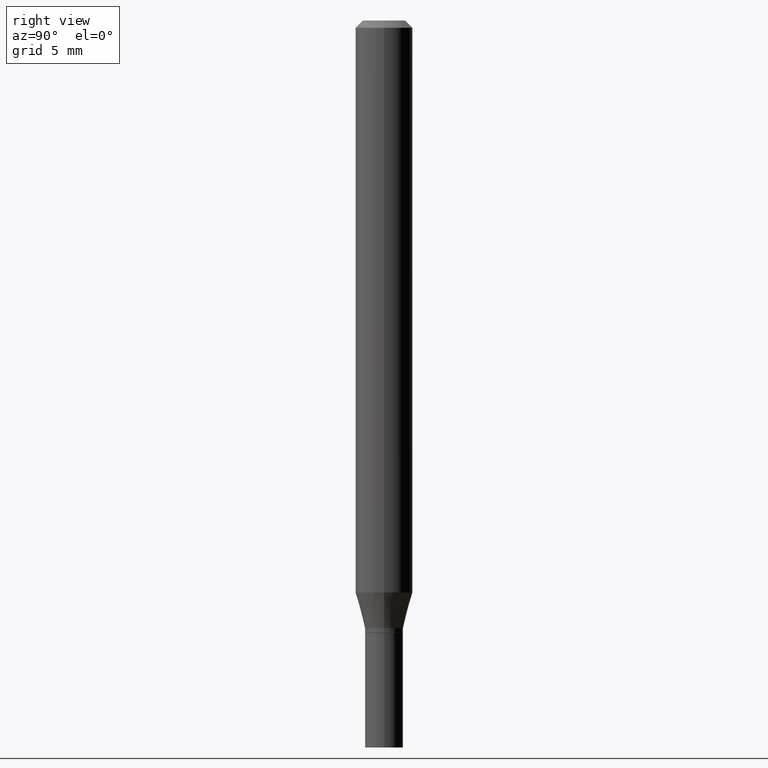
[diagram: clean part render]
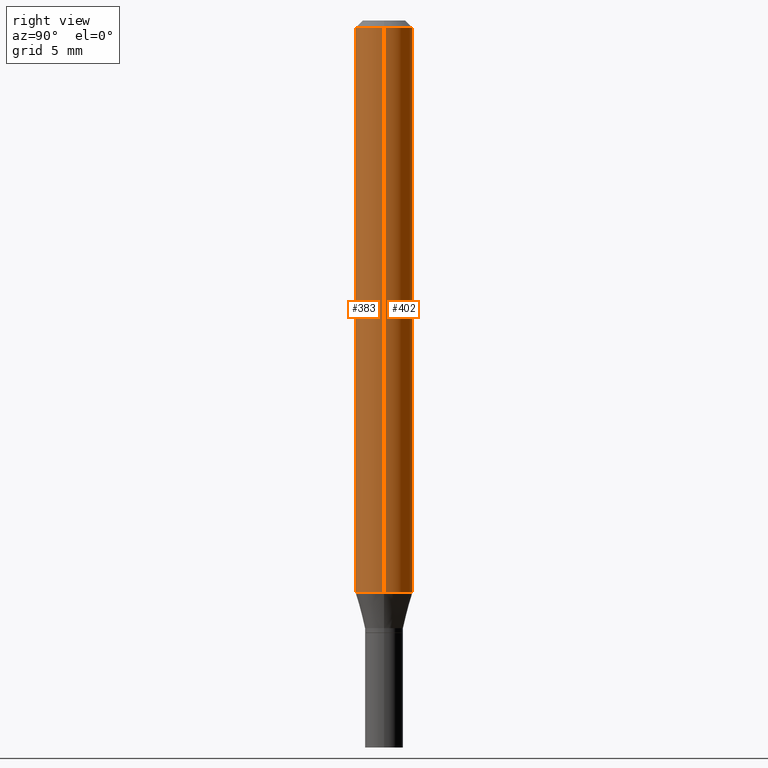
[diagram: same view with one multi-face feature highlighted, each face labeled with its STEP entity id]
A machine part, right view. The highlighted faces form ONE feature: a constant-radius fillet chain: 2 tangent blend faces with common blend radius 1.4999 mm. The faces share edges in the B-rep.
Their STEP definitions:
[1] entity #383 (Cylinder):
#5 = CARTESIAN_POINT ( 'NONE',  ( -0.05904999999999999832, 4.195754854663391478E-16, -2.904631170795521892E-30 ) ) ;
#7 = VERTEX_POINT ( 'NONE', #28 ) ;
#18 = ORIENTED_EDGE ( 'NONE', *, *, #238, .T. ) ;
#28 = CARTESIAN_POINT ( 'NONE',  ( -0.05904999999999999832, -1.667070976255876334E-15, -0.01499999999999999944 ) ) ;
#47 = CARTESIAN_POINT ( 'NONE',  ( 0.05904999999999999832, -4.533264649479156735E-15, -1.180278599090893055 ) ) ;
#48 = DIRECTION ( 'NONE',  ( -2.445468806185136877E-29, 3.491481338843145188E-15, 1.000000000000000000 ) ) ;
#55 = CARTESIAN_POINT ( 'NONE',  ( 0.05904999999999999832, -4.123439461173740327E-16, 2.879382386107500220E-30 ) ) ;
#61 = EDGE_CURVE ( 'NONE', #70, #7, #324, .T. ) ;
#70 = VERTEX_POINT ( 'NONE', #250 ) ;
#86 = VECTOR ( 'NONE', #227, 39.37007874015748143 ) ;
#97 = VECTOR ( 'NONE', #48, 39.37007874015748143 ) ;
#99 = FACE_OUTER_BOUND ( 'NONE', #168, .T. ) ;
#116 = DIRECTION ( 'NONE',  ( 1.000000000000000000, -6.982962677686265133E-15, 0.000000000000000000 ) ) ;
#121 = EDGE_CURVE ( 'NONE', #7, #286, #355, .T. ) ;
#128 = CARTESIAN_POINT ( 'NONE',  ( 0.000000000000000000, 0.000000000000000000, 0.000000000000000000 ) ) ;
#129 = VERTEX_POINT ( 'NONE', #47 ) ;
#137 = ORIENTED_EDGE ( 'NONE', *, *, #218, .T. ) ;
#168 = EDGE_LOOP ( 'NONE', ( #395, #137, #18, #379 ) ) ;
#196 = AXIS2_PLACEMENT_3D ( 'NONE', #128, #456, #244 ) ;
#218 = EDGE_CURVE ( 'NONE', #70, #129, #422, .T. ) ;
#224 = CARTESIAN_POINT ( 'NONE',  ( 0.05904999999999999832, -4.647161662000212105E-16, -0.01499999999999999944 ) ) ;
#227 = DIRECTION ( 'NONE',  ( -2.445468806185136877E-29, 3.491481338843145188E-15, 1.000000000000000000 ) ) ;
#229 = LINE ( 'NONE', #55, #86 ) ;
#238 = EDGE_CURVE ( 'NONE', #129, #286, #229, .T. ) ;
#244 = DIRECTION ( 'NONE',  ( 1.000000000000000000, -6.982962677686266711E-15, 4.876176775795936353E-29 ) ) ;
#250 = CARTESIAN_POINT ( 'NONE',  ( -0.05904999999999999832, -3.701345217895443899E-15, -1.180278599090893055 ) ) ;
#256 = DIRECTION ( 'NONE',  ( 1.000000000000000000, -6.982962677686266711E-15, 0.000000000000000000 ) ) ;
#286 = VERTEX_POINT ( 'NONE', #224 ) ;
#296 = DIRECTION ( 'NONE',  ( -2.445468806185136597E-29, 3.491481338843145583E-15, 1.000000000000000000 ) ) ;
#320 = DIRECTION ( 'NONE',  ( -2.445468806185136597E-29, 3.491481338843145583E-15, 1.000000000000000000 ) ) ;
#324 = LINE ( 'NONE', #5, #97 ) ;
#325 = CARTESIAN_POINT ( 'NONE',  ( 3.668203209277705088E-31, -5.237222008264718399E-17, -0.01499999999999999944 ) ) ;
#332 = CARTESIAN_POINT ( 'NONE',  ( 2.886334496684671915E-29, -4.120920703361783392E-15, -1.180278599090893055 ) ) ;
#355 = CIRCLE ( 'NONE', #411, 0.05904999999999999832 ) ;
#379 = ORIENTED_EDGE ( 'NONE', *, *, #121, .F. ) ;
#383 = ADVANCED_FACE ( 'NONE', ( #99 ), #424, .T. ) ;
#395 = ORIENTED_EDGE ( 'NONE', *, *, #61, .F. ) ;
#411 = AXIS2_PLACEMENT_3D ( 'NONE', #325, #320, #256 ) ;
#422 = CIRCLE ( 'NONE', #453, 0.05904999999999999832 ) ;
#424 = CYLINDRICAL_SURFACE ( 'NONE', #196, 0.05904999999999999832 ) ;
#453 = AXIS2_PLACEMENT_3D ( 'NONE', #332, #296, #116 ) ;
#456 = DIRECTION ( 'NONE',  ( -2.445468806185136597E-29, 3.491481338843145583E-15, 1.000000000000000000 ) ) ;
[2] entity #402 (Cylinder):
#4 = ORIENTED_EDGE ( 'NONE', *, *, #259, .T. ) ;
#5 = CARTESIAN_POINT ( 'NONE',  ( -0.05904999999999999832, 4.195754854663391478E-16, -2.904631170795521892E-30 ) ) ;
#7 = VERTEX_POINT ( 'NONE', #28 ) ;
#28 = CARTESIAN_POINT ( 'NONE',  ( -0.05904999999999999832, -1.667070976255876334E-15, -0.01499999999999999944 ) ) ;
#47 = CARTESIAN_POINT ( 'NONE',  ( 0.05904999999999999832, -4.533264649479156735E-15, -1.180278599090893055 ) ) ;
#48 = DIRECTION ( 'NONE',  ( -2.445468806185136877E-29, 3.491481338843145188E-15, 1.000000000000000000 ) ) ;
#55 = CARTESIAN_POINT ( 'NONE',  ( 0.05904999999999999832, -4.123439461173740327E-16, 2.879382386107500220E-30 ) ) ;
#61 = EDGE_CURVE ( 'NONE', #70, #7, #324, .T. ) ;
#67 = AXIS2_PLACEMENT_3D ( 'NONE', #125, #328, #85 ) ;
#70 = VERTEX_POINT ( 'NONE', #250 ) ;
#85 = DIRECTION ( 'NONE',  ( 1.000000000000000000, -6.982962677686265133E-15, 0.000000000000000000 ) ) ;
#86 = VECTOR ( 'NONE', #227, 39.37007874015748143 ) ;
#97 = VECTOR ( 'NONE', #48, 39.37007874015748143 ) ;
#125 = CARTESIAN_POINT ( 'NONE',  ( 2.886334496684671915E-29, -4.120920703361783392E-15, -1.180278599090893055 ) ) ;
#129 = VERTEX_POINT ( 'NONE', #47 ) ;
#136 = ORIENTED_EDGE ( 'NONE', *, *, #238, .F. ) ;
#144 = ORIENTED_EDGE ( 'NONE', *, *, #400, .F. ) ;
#166 = FACE_OUTER_BOUND ( 'NONE', #284, .T. ) ;
#181 = ORIENTED_EDGE ( 'NONE', *, *, #61, .T. ) ;
#224 = CARTESIAN_POINT ( 'NONE',  ( 0.05904999999999999832, -4.647161662000212105E-16, -0.01499999999999999944 ) ) ;
#227 = DIRECTION ( 'NONE',  ( -2.445468806185136877E-29, 3.491481338843145188E-15, 1.000000000000000000 ) ) ;
#229 = LINE ( 'NONE', #55, #86 ) ;
#236 = CARTESIAN_POINT ( 'NONE',  ( 3.668203209277705088E-31, -5.237222008264718399E-17, -0.01499999999999999944 ) ) ;
#238 = EDGE_CURVE ( 'NONE', #129, #286, #229, .T. ) ;
#250 = CARTESIAN_POINT ( 'NONE',  ( -0.05904999999999999832, -3.701345217895443899E-15, -1.180278599090893055 ) ) ;
#259 = EDGE_CURVE ( 'NONE', #129, #70, #377, .T. ) ;
#262 = AXIS2_PLACEMENT_3D ( 'NONE', #344, #374, #417 ) ;
#269 = CYLINDRICAL_SURFACE ( 'NONE', #262, 0.05904999999999999832 ) ;
#271 = DIRECTION ( 'NONE',  ( -2.445468806185136597E-29, 3.491481338843145583E-15, 1.000000000000000000 ) ) ;
#284 = EDGE_LOOP ( 'NONE', ( #4, #181, #144, #136 ) ) ;
#286 = VERTEX_POINT ( 'NONE', #224 ) ;
#324 = LINE ( 'NONE', #5, #97 ) ;
#328 = DIRECTION ( 'NONE',  ( -2.445468806185136597E-29, 3.491481338843145583E-15, 1.000000000000000000 ) ) ;
#344 = CARTESIAN_POINT ( 'NONE',  ( 0.000000000000000000, 0.000000000000000000, 0.000000000000000000 ) ) ;
#365 = AXIS2_PLACEMENT_3D ( 'NONE', #236, #271, #380 ) ;
#374 = DIRECTION ( 'NONE',  ( -2.445468806185136597E-29, 3.491481338843145583E-15, 1.000000000000000000 ) ) ;
#377 = CIRCLE ( 'NONE', #67, 0.05904999999999999832 ) ;
#380 = DIRECTION ( 'NONE',  ( 1.000000000000000000, -6.982962677686266711E-15, 0.000000000000000000 ) ) ;
#400 = EDGE_CURVE ( 'NONE', #286, #7, #446, .T. ) ;
#402 = ADVANCED_FACE ( 'NONE', ( #166 ), #269, .T. ) ;
#417 = DIRECTION ( 'NONE',  ( 1.000000000000000000, -6.982962677686266711E-15, 4.876176775795936353E-29 ) ) ;
#446 = CIRCLE ( 'NONE', #365, 0.05904999999999999832 ) ;